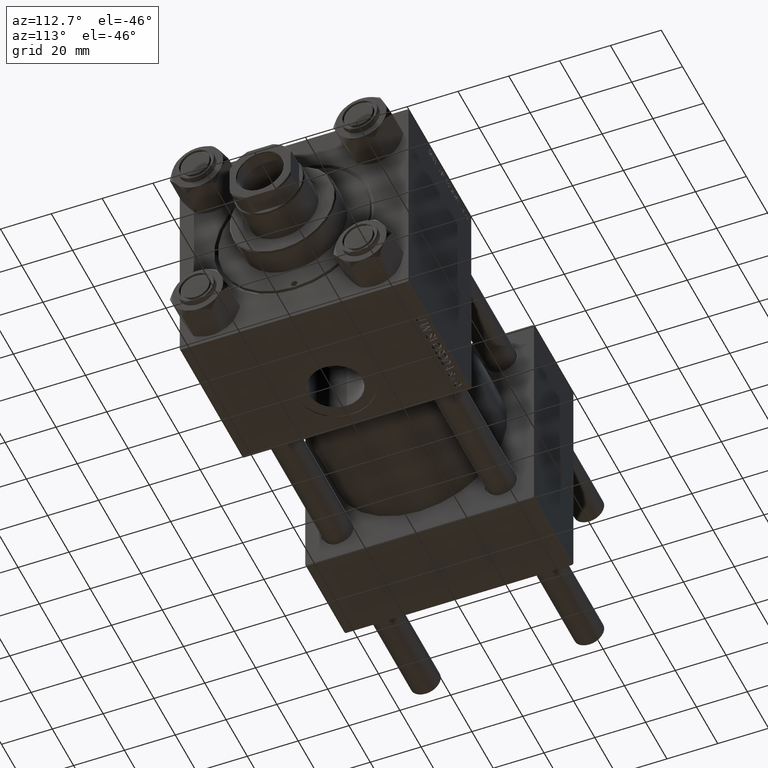
[diagram: clean part render]
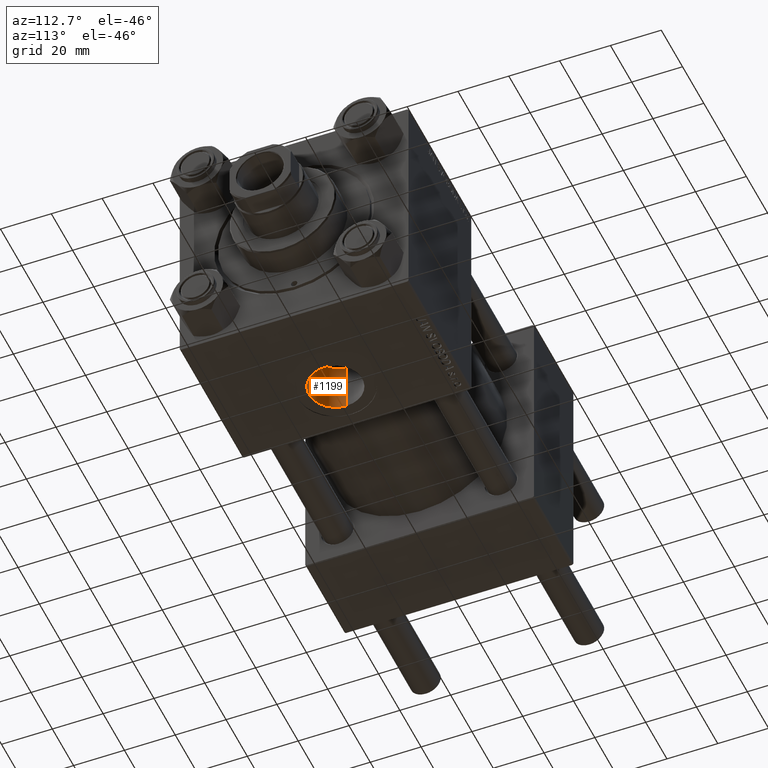
[diagram: same view with one face highlighted and labeled with its STEP entity id]
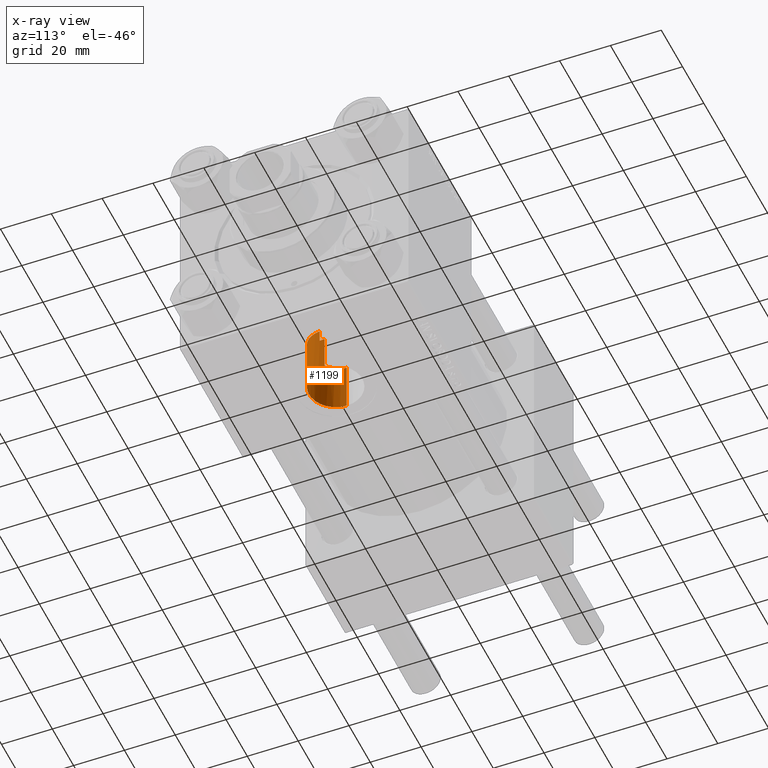
[diagram: x-ray of the same camera — body ghosted, the highlighted face saturated]
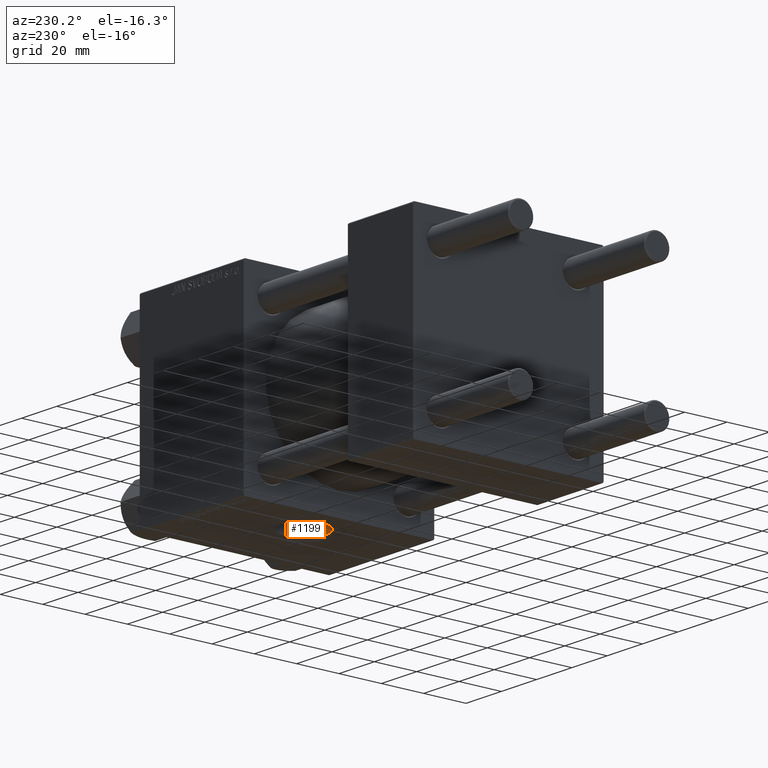
[diagram: same view with one face highlighted and labeled with its STEP entity id]
A machine part, auxiliary view. The second image highlights one B-rep face of the part: STEP entity #1199.
The next image is the same camera in x-ray: the body ghosted, the highlighted face saturated — about 0% of this face is hidden behind the body in this view.
A second angle (auxiliary view) of the same face is appended — the face is thin or edge-on in the first view.
In plain terms, the highlighted cylindrical surface (edge-blend (fillet) strip) has radius 10.48 mm, axis along (-0, -0, -1).
Its self-contained STEP definition (entity closure, byte-faithful):
#313 = VERTEX_POINT ( 'NONE', #32367 ) ;
#444 = CARTESIAN_POINT ( 'NONE',  ( 122.5881842815777816, -8.156529320537673655, -23.63288506601807626 ) ) ;
#1069 = DIRECTION ( 'NONE',  ( -0.000000000000000000, -0.000000000000000000, -1.000000000000000000 ) ) ;
#1181 = CARTESIAN_POINT ( 'NONE',  ( 119.5191464987685492, -9.892677015601911705, -22.96025190858004450 ) ) ;
#1199 = ADVANCED_FACE ( 'NONE', ( #41309 ), #7680, .F. ) ;
#1434 = CARTESIAN_POINT ( 'NONE',  ( 105.5818071920056980, -1.308581473532915540, -24.97391262842696591 ) ) ;
#1909 = DIRECTION ( 'NONE',  ( 0.000000000000000000, 0.000000000000000000, -1.000000000000000000 ) ) ;
#2504 = LINE ( 'NONE', #3433, #35525 ) ;
#3433 = CARTESIAN_POINT ( 'NONE',  ( 126.4800000000000040, 1.283429845506426277E-15, 45.00100000000001899 ) ) ;
#4001 = EDGE_LOOP ( 'NONE', ( #47385, #12457, #46152, #49117, #49548, #19677 ) ) ;
#4491 = CARTESIAN_POINT ( 'NONE',  ( 120.1305158875483272, -9.653130961559764245, -23.06326223111440399 ) ) ;
#4884 = CARTESIAN_POINT ( 'NONE',  ( 116.0000000000000000, 0.000000000000000000, 45.00100000000001899 ) ) ;
#5002 = CARTESIAN_POINT ( 'NONE',  ( 121.2799622129796120, -9.075577000269483108, -23.29658567718350071 ) ) ;
#5241 = CARTESIAN_POINT ( 'NONE',  ( 108.6967142337210106, -7.543102876757537878, -23.83992232486124507 ) ) ;
#6635 = CARTESIAN_POINT ( 'NONE',  ( 126.4800000000000040, -0.6446704584514660885, -30.00000000000000000 ) ) ;
#7274 = EDGE_CURVE ( 'NONE', #313, #37183, #11676, .T. ) ;
#7680 = CYLINDRICAL_SURFACE ( 'NONE', #45045, 10.48000000000000398 ) ;
#8028 = CARTESIAN_POINT ( 'NONE',  ( 126.2999999999999972, -1.934011375354396822, -24.92507973909010133 ) ) ;
#8066 = CARTESIAN_POINT ( 'NONE',  ( 107.8366666851092361, -6.602754969198477042, -24.11729512780176421 ) ) ;
#8316 = CARTESIAN_POINT ( 'NONE',  ( 116.3249356798893643, -10.48003868634413571, -22.69733000012451996 ) ) ;
#8550 = CARTESIAN_POINT ( 'NONE',  ( 124.1765169174770591, -6.586323219591126765, -24.12178888262454635 ) ) ;
#8799 = CARTESIAN_POINT ( 'NONE',  ( 105.7624658305543903, -2.264613839882672952, -24.89927104389816748 ) ) ;
#9054 = CARTESIAN_POINT ( 'NONE',  ( 107.4437381693998503, -6.085402802302637859, -24.25447456549319725 ) ) ;
#11676 = B_SPLINE_CURVE_WITH_KNOTS ( 'NONE', 3,
 ( #33146, #43672, #1434, #8799, #31314, #32305, #35605, #43423, #35844, #9054, #8066, #5241, #12585, #28020, #24242, #39630, #16638, #23994, #27278, #46726, #24488, #19698, #39129, #35105, #8316, #23509, #39875, #23749, #1181, #4491, #5002, #42935, #444, #19941, #20200, #20684, #8550, #36089, #31569, #16895, #12109, #32047, #35354, #15894, #39377 ),
 .UNSPECIFIED., .F., .F.,
 ( 4, 2, 2, 2, 2, 2, 2, 2, 2, 2, 2, 1, 2, 2, 2, 2, 2, 2, 2, 2, 2, 2, 4 ),
 ( 0.000000000000000000, 0.001950832952766666560, 0.002926249429150000383, 0.003901665905533333988, 0.005852498858299998163, 0.007803331811066661038, 0.009754164763833325646, 0.01072958124021665752, 0.01170499771659998939, 0.01365583066936661497, 0.01463124714574992775, 0.01560666362213323881, 0.01658208009851655160, 0.01755749657489986612, 0.01950832952766649170, 0.02145916248043311728, 0.02340999543319974285, 0.02438541190958303656, 0.02536082838596633374, 0.02731166133873294891, 0.02828707781511628078, 0.02926249429149961612, 0.03121332724426627639 ),
 .UNSPECIFIED. ) ;
#12109 = CARTESIAN_POINT ( 'NONE',  ( 125.5188295761803516, -4.396109388522557282, -24.61219324324231295 ) ) ;
#12457 = ORIENTED_EDGE ( 'NONE', *, *, #27666, .T. ) ;
#12585 = CARTESIAN_POINT ( 'NONE',  ( 109.1664433524416324, -7.971438572255708621, -23.69861894829194071 ) ) ;
#13061 = CARTESIAN_POINT ( 'NONE',  ( 116.0000000000000000, 0.000000000000000000, -44.79999999999999716 ) ) ;
#13657 = VERTEX_POINT ( 'NONE', #19625 ) ;
#13870 = CARTESIAN_POINT ( 'NONE',  ( 126.4800000000000040, -3.211609313723368512E-16, -30.00000000000000000 ) ) ;
#14142 = DIRECTION ( 'NONE',  ( -0.000000000000000000, -0.000000000000000000, -1.000000000000000000 ) ) ;
#14221 = CARTESIAN_POINT ( 'NONE',  ( 126.4210485436893237, -1.289340916902932843, -29.97924172559974210 ) ) ;
#15894 = CARTESIAN_POINT ( 'NONE',  ( 126.1786094161472249, -2.580503443403392883, -24.87491648879075257 ) ) ;
#16638 = CARTESIAN_POINT ( 'NONE',  ( 111.0248463731256834, -9.229325018898082433, -23.23452960213940344 ) ) ;
#16895 = CARTESIAN_POINT ( 'NONE',  ( 125.2312658750376642, -4.971682270679453453, -24.50241231793251018 ) ) ;
#16910 = VECTOR ( 'NONE', #48933, 1000.000000000000000 ) ;
#17363 = DIRECTION ( 'NONE',  ( -1.000000000000000000, 0.000000000000000000, 0.000000000000000000 ) ) ;
#17468 = LINE ( 'NONE', #32884, #24911 ) ;
#19071 = EDGE_CURVE ( 'NONE', #26622, #13657, #45825, .T. ) ;
#19625 = CARTESIAN_POINT ( 'NONE',  ( 105.5199999999999960, 0.000000000000000000, -44.79999999999999716 ) ) ;
#19677 = ORIENTED_EDGE ( 'NONE', *, *, #46247, .T. ) ;
#19698 = CARTESIAN_POINT ( 'NONE',  ( 114.3808898847619417, -10.35928119115758506, -22.75279445186080096 ) ) ;
#19941 = CARTESIAN_POINT ( 'NONE',  ( 122.8365438491400710, -7.949499097166872197, -23.70352448557500225 ) ) ;
#20200 = CARTESIAN_POINT ( 'NONE',  ( 123.3089726448283869, -7.517432179555940230, -23.84407310758562915 ) ) ;
#20684 = CARTESIAN_POINT ( 'NONE',  ( 123.5339987138302718, -7.291805948712756447, -23.91421447840230741 ) ) ;
#22666 = LINE ( 'NONE', #49429, #16910 ) ;
#23369 = VERTEX_POINT ( 'NONE', #39971 ) ;
#23509 = CARTESIAN_POINT ( 'NONE',  ( 116.6542654199454034, -10.46472977730312870, -22.70441765318204119 ) ) ;
#23749 = CARTESIAN_POINT ( 'NONE',  ( 118.2749142050031850, -10.25057149502836396, -22.80271936120304233 ) ) ;
#23994 = CARTESIAN_POINT ( 'NONE',  ( 111.8825192181714243, -9.658443335916395256, -23.06099947694142571 ) ) ;
#24242 = CARTESIAN_POINT ( 'NONE',  ( 110.2003815447181552, -8.734860140023581465, -23.42509368751976595 ) ) ;
#24488 = CARTESIAN_POINT ( 'NONE',  ( 113.7415073116948605, -10.23891767422755983, -22.80721217129551448 ) ) ;
#24911 = VECTOR ( 'NONE', #25309, 1000.000000000000000 ) ;
#25309 = DIRECTION ( 'NONE',  ( -0.000000000000000000, -0.000000000000000000, -1.000000000000000000 ) ) ;
#25894 = EDGE_CURVE ( 'NONE', #313, #13657, #22666, .T. ) ;
#26622 = VERTEX_POINT ( 'NONE', #34855 ) ;
#27278 = CARTESIAN_POINT ( 'NONE',  ( 112.4807482312075848, -9.892986188757095789, -22.96012941614321079 ) ) ;
#27666 = EDGE_CURVE ( 'NONE', #46661, #26622, #2504, .T. ) ;
#28020 = CARTESIAN_POINT ( 'NONE',  ( 109.9333177349950859, -8.551520252980353121, -23.49284134805247248 ) ) ;
#31314 = CARTESIAN_POINT ( 'NONE',  ( 105.8374462348555767, -2.580507450933922087, -24.86846075284820046 ) ) ;
#31569 = CARTESIAN_POINT ( 'NONE',  ( 125.0731273901009786, -5.254819858100687746, -24.44311888910904784 ) ) ;
#32047 = CARTESIAN_POINT ( 'NONE',  ( 125.6489970835539509, -4.102504435787793113, -24.66295334884136992 ) ) ;
#32122 = AXIS2_PLACEMENT_3D ( 'NONE', #13061, #1909, #17363 ) ;
#32305 = CARTESIAN_POINT ( 'NONE',  ( 106.0173339090779479, -3.206695409753053561, -24.79549280553514734 ) ) ;
#32367 = CARTESIAN_POINT ( 'NONE',  ( 105.5199999999999960, 0.000000000000000000, -25.00000000000000000 ) ) ;
#32884 = CARTESIAN_POINT ( 'NONE',  ( 126.2999999999999972, -1.934011375354396822, 45.00100000000001899 ) ) ;
#33146 = CARTESIAN_POINT ( 'NONE',  ( 105.5199999999999960, 0.000000000000000000, -25.00000000000000000 ) ) ;
#34855 = CARTESIAN_POINT ( 'NONE',  ( 126.4800000000000040, 1.283429845506425883E-15, -44.79999999999999716 ) ) ;
#35105 = CARTESIAN_POINT ( 'NONE',  ( 115.6725736275517278, -10.47996116567042613, -22.69736579358632866 ) ) ;
#35354 = CARTESIAN_POINT ( 'NONE',  ( 125.9988722560858321, -3.204076007657264302, -24.80123261187419104 ) ) ;
#35525 = VECTOR ( 'NONE', #14142, 1000.000000000000000 ) ;
#35605 = CARTESIAN_POINT ( 'NONE',  ( 106.1227396704031349, -3.517841578496965216, -24.75314304094079176 ) ) ;
#35844 = CARTESIAN_POINT ( 'NONE',  ( 106.7655333888333047, -4.996635887004860166, -24.50194468867981001 ) ) ;
#36089 = CARTESIAN_POINT ( 'NONE',  ( 124.5617753468521869, -6.078148766063460329, -24.25639871560566974 ) ) ;
#37183 = VERTEX_POINT ( 'NONE', #8028 ) ;
#39014 = DIRECTION ( 'NONE',  ( -1.000000000000000000, 0.000000000000000000, 0.000000000000000000 ) ) ;
#39129 = CARTESIAN_POINT ( 'NONE',  ( 115.0235039550603773, -10.44949508551559347, -22.71146891957199543 ) ) ;
#39377 = CARTESIAN_POINT ( 'NONE',  ( 126.2999999999999972, -1.934011375354396822, -24.92507973909010133 ) ) ;
#39630 = CARTESIAN_POINT ( 'NONE',  ( 110.7456161584478878, -9.073301843224147234, -23.29609386993012876 ) ) ;
#39875 = CARTESIAN_POINT ( 'NONE',  ( 117.6368862508290078, -10.37226752492875548, -22.74688258904294358 ) ) ;
#39971 = CARTESIAN_POINT ( 'NONE',  ( 126.2999999999999972, -1.934011375354396822, -29.93759509379468753 ) ) ;
#41262 = CARTESIAN_POINT ( 'NONE',  ( 126.2999999999999972, -1.934011375354396822, -29.93759509379468753 ) ) ;
#41309 = FACE_OUTER_BOUND ( 'NONE', #4001, .T. ) ;
#42935 = CARTESIAN_POINT ( 'NONE',  ( 121.8219997909139209, -8.737602026521665621, -23.42697631423588334 ) ) ;
#43423 = CARTESIAN_POINT ( 'NONE',  ( 106.4771871709745596, -4.423433031421212469, -24.61313550369479231 ) ) ;
#43672 = CARTESIAN_POINT ( 'NONE',  ( 105.5200000000000387, -0.6601608298313249579, -25.00000000000000355 ) ) ;
#43735 = B_SPLINE_CURVE_WITH_KNOTS ( 'NONE', 3,
 ( #48847, #6635, #14221, #41262 ),
 .UNSPECIFIED., .F., .F.,
 ( 4, 4 ),
 ( 0.001934011375354397324, 0.003868022750708794213 ),
 .UNSPECIFIED. ) ;
#45045 = AXIS2_PLACEMENT_3D ( 'NONE', #4884, #1069, #39014 ) ;
#45825 = CIRCLE ( 'NONE', #32122, 10.48000000000000398 ) ;
#46005 = EDGE_CURVE ( 'NONE', #46661, #23369, #43735, .T. ) ;
#46152 = ORIENTED_EDGE ( 'NONE', *, *, #19071, .T. ) ;
#46247 = EDGE_CURVE ( 'NONE', #37183, #23369, #17468, .T. ) ;
#46661 = VERTEX_POINT ( 'NONE', #13870 ) ;
#46726 = CARTESIAN_POINT ( 'NONE',  ( 113.4216632649265080, -10.16312239748898882, -22.84120449468249348 ) ) ;
#47385 = ORIENTED_EDGE ( 'NONE', *, *, #46005, .F. ) ;
#48847 = CARTESIAN_POINT ( 'NONE',  ( 126.4800000000000040, -3.211609313723368512E-16, -30.00000000000000000 ) ) ;
#48933 = DIRECTION ( 'NONE',  ( -0.000000000000000000, -0.000000000000000000, -1.000000000000000000 ) ) ;
#49117 = ORIENTED_EDGE ( 'NONE', *, *, #25894, .F. ) ;
#49429 = CARTESIAN_POINT ( 'NONE',  ( 105.5199999999999960, 0.000000000000000000, 45.00100000000001899 ) ) ;
#49548 = ORIENTED_EDGE ( 'NONE', *, *, #7274, .T. ) ;